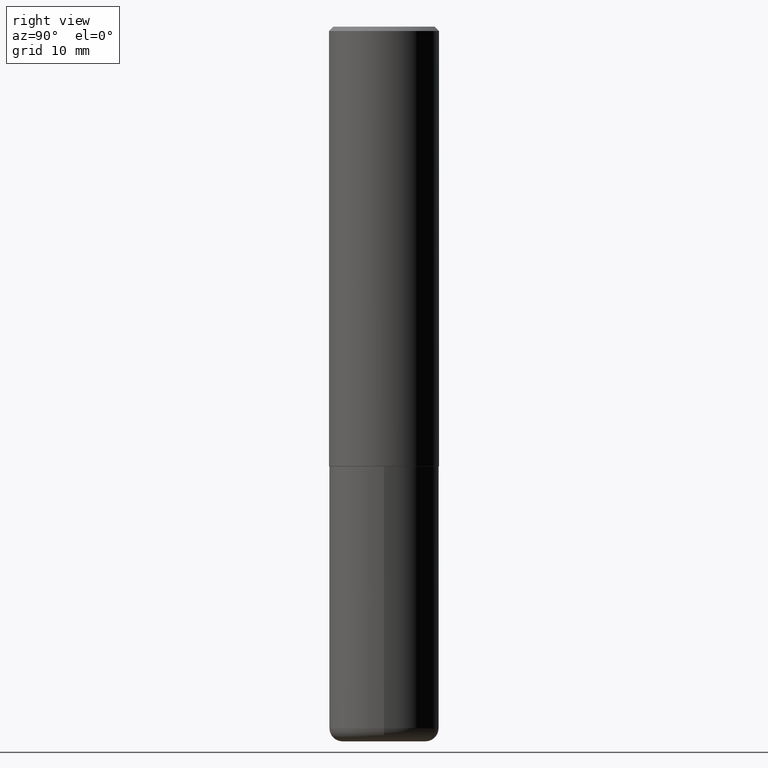
[diagram: clean part render]
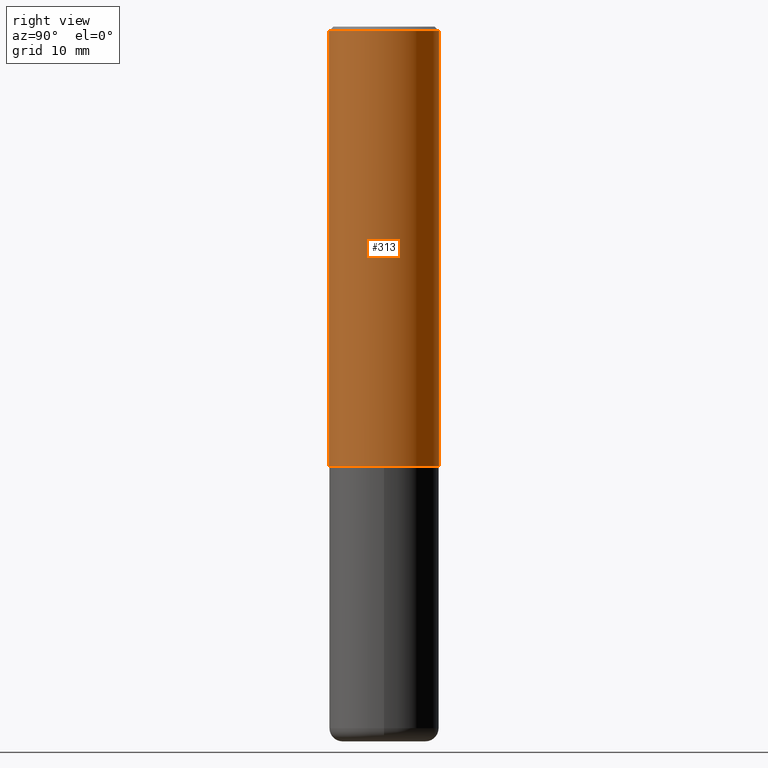
[diagram: same view with one face highlighted and labeled with its STEP entity id]
A machine part, right view. The second image highlights one B-rep face of the part: STEP entity #313.
In plain terms, the highlighted cylindrical surface (partial cylindrical patch) has radius 6.35 mm, axis along (-0, 0, 1).
Its self-contained STEP definition (entity closure, byte-faithful):
#7 = EDGE_CURVE ( 'NONE', #148, #216, #196, .T. ) ;
#21 = EDGE_CURVE ( 'NONE', #216, #146, #98, .T. ) ;
#34 = VECTOR ( 'NONE', #317, 39.37007874015748143 ) ;
#36 = CARTESIAN_POINT ( 'NONE',  ( 0.000000000000000000, 0.000000000000000000, 0.000000000000000000 ) ) ;
#44 = CARTESIAN_POINT ( 'NONE',  ( -1.745740669421567467E-15, -0.2500000000000001110, 8.733679081896635319E-16 ) ) ;
#62 = CARTESIAN_POINT ( 'NONE',  ( -1.745740669421519543E-15, -0.2500000000000072720, -1.998999999999999000 ) ) ;
#64 = DIRECTION ( 'NONE',  ( -2.444078991372175563E-29, 3.493471632758652550E-15, 1.000000000000000000 ) ) ;
#73 = DIRECTION ( 'NONE',  ( -6.982962677686265133E-15, -1.000000000000000000, 3.500180241882336472E-15 ) ) ;
#98 = LINE ( 'NONE', #401, #34 ) ;
#103 = AXIS2_PLACEMENT_3D ( 'NONE', #36, #298, #367 ) ;
#107 = DIRECTION ( 'NONE',  ( -2.444078991372175563E-29, 3.493471632758652550E-15, 1.000000000000000000 ) ) ;
#120 = EDGE_LOOP ( 'NONE', ( #381, #288, #375, #188 ) ) ;
#134 = CYLINDRICAL_SURFACE ( 'NONE', #103, 0.2500000000000001110 ) ;
#136 = VECTOR ( 'NONE', #107, 39.37007874015748143 ) ;
#146 = VERTEX_POINT ( 'NONE', #255 ) ;
#148 = VERTEX_POINT ( 'NONE', #62 ) ;
#163 = CARTESIAN_POINT ( 'NONE',  ( 1.776356839400276103E-15, 0.2499999999999932832, -1.999000000000000776 ) ) ;
#188 = ORIENTED_EDGE ( 'NONE', *, *, #400, .F. ) ;
#196 = CIRCLE ( 'NONE', #280, 0.2500000000000002776 ) ;
#216 = VERTEX_POINT ( 'NONE', #163 ) ;
#219 = CARTESIAN_POINT ( 'NONE',  ( 4.885713903752978284E-29, -6.983449793884546288E-15, -1.998999999999999888 ) ) ;
#226 = CARTESIAN_POINT ( 'NONE',  ( -1.715124499442882496E-15, -0.2500000000000001110, -0.01999999999999921632 ) ) ;
#230 = EDGE_CURVE ( 'NONE', #248, #146, #281, .T. ) ;
#246 = LINE ( 'NONE', #44, #136 ) ;
#248 = VERTEX_POINT ( 'NONE', #226 ) ;
#255 = CARTESIAN_POINT ( 'NONE',  ( 1.745740669421567269E-15, 0.2499999999999999722, -0.02000000000000096492 ) ) ;
#280 = AXIS2_PLACEMENT_3D ( 'NONE', #219, #64, #310 ) ;
#281 = CIRCLE ( 'NONE', #326, 0.2500000000000000555 ) ;
#288 = ORIENTED_EDGE ( 'NONE', *, *, #21, .T. ) ;
#298 = DIRECTION ( 'NONE',  ( -2.444078991372175563E-29, 3.493471632758652550E-15, 1.000000000000000000 ) ) ;
#300 = CARTESIAN_POINT ( 'NONE',  ( 4.888157982744373443E-31, -6.986943265517335816E-17, -0.02000000000000009062 ) ) ;
#310 = DIRECTION ( 'NONE',  ( -6.982962677686265922E-15, -1.000000000000000000, 3.278217592397112312E-15 ) ) ;
#313 = ADVANCED_FACE ( 'NONE', ( #362 ), #134, .T. ) ;
#317 = DIRECTION ( 'NONE',  ( -2.444078991372175563E-29, 3.493471632758652550E-15, 1.000000000000000000 ) ) ;
#326 = AXIS2_PLACEMENT_3D ( 'NONE', #300, #368, #73 ) ;
#362 = FACE_OUTER_BOUND ( 'NONE', #120, .T. ) ;
#367 = DIRECTION ( 'NONE',  ( -6.982962677686266711E-15, -1.000000000000000000, 3.493471632758652550E-15 ) ) ;
#368 = DIRECTION ( 'NONE',  ( -2.444078991372175563E-29, 3.493471632758652550E-15, 1.000000000000000000 ) ) ;
#375 = ORIENTED_EDGE ( 'NONE', *, *, #230, .F. ) ;
#381 = ORIENTED_EDGE ( 'NONE', *, *, #7, .T. ) ;
#400 = EDGE_CURVE ( 'NONE', #148, #248, #246, .T. ) ;
#401 = CARTESIAN_POINT ( 'NONE',  ( 1.776356839400251254E-15, 0.2500000000000001110, -8.733679081896635319E-16 ) ) ;